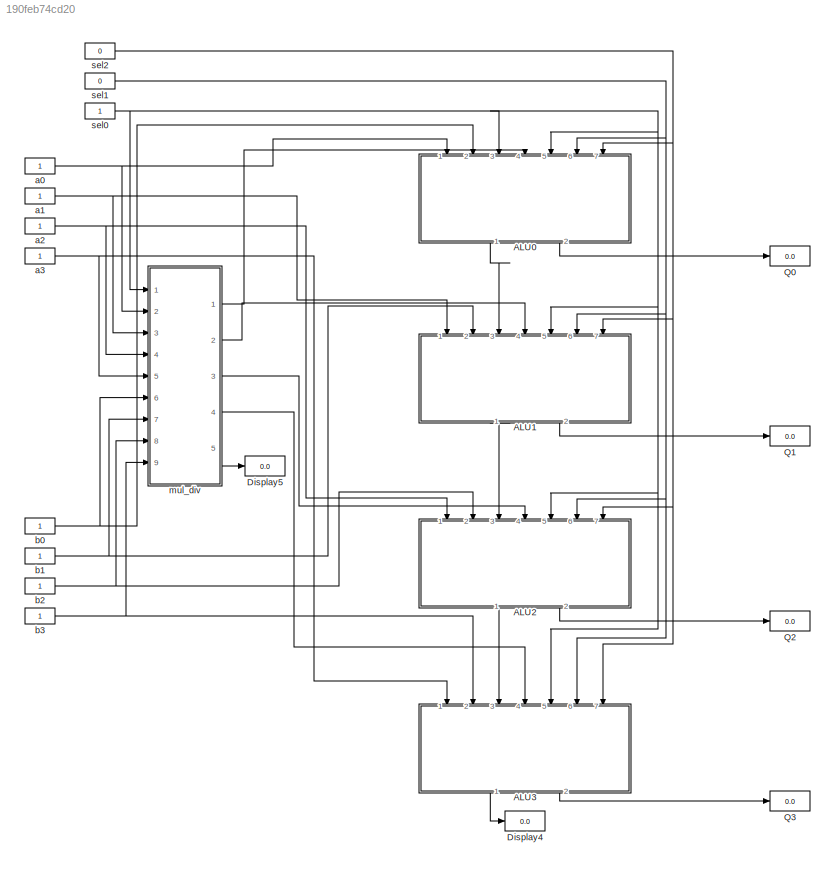
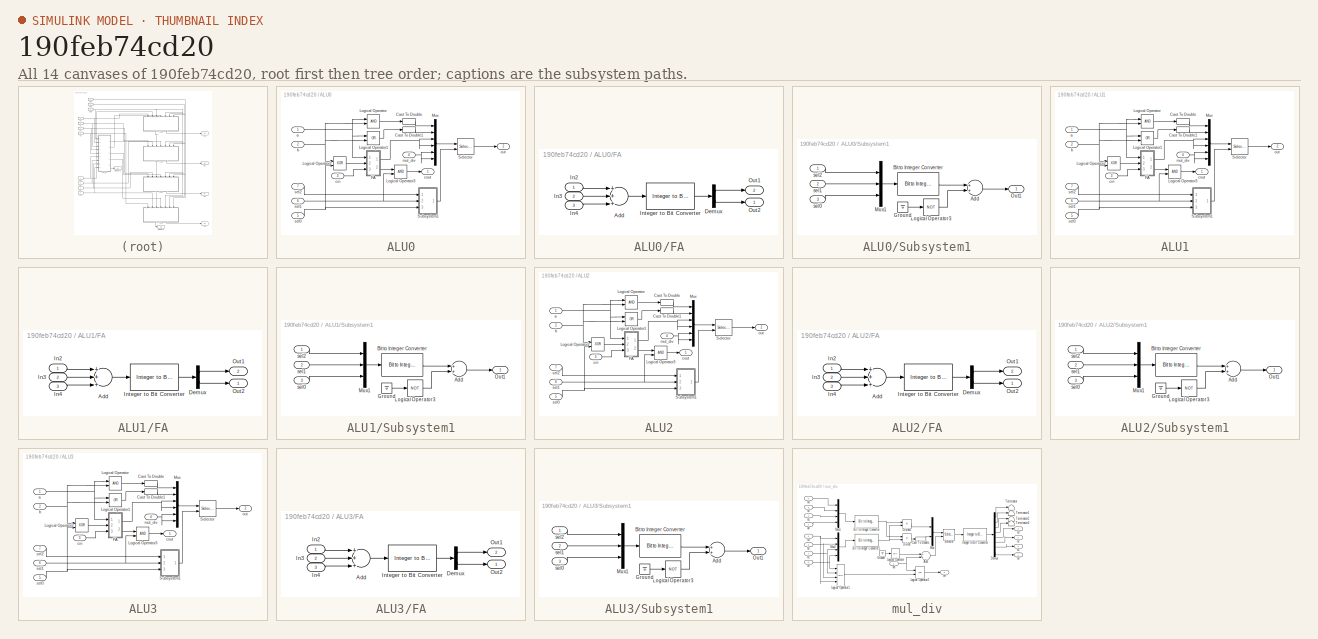
[diagram: thumbnail index - all 14 canvases of the model, root first then tree order]
MODEL slx_190feb74cd20
KIND model
CONFIG AbsTol = auto
CONFIG EnableMultiTasking = off
CONFIG FixedStep = auto
CONFIG MaxStep = auto
CONFIG MinStep = auto
CONFIG RelTol = 1e-3
CONFIG SampleTimeConstraint = Unconstrained
CONFIG Solver = VariableStepAuto
CONFIG SolverName = VariableStepAuto
CONFIG StartTime = 0.0
CONFIG StopTime = 10.0
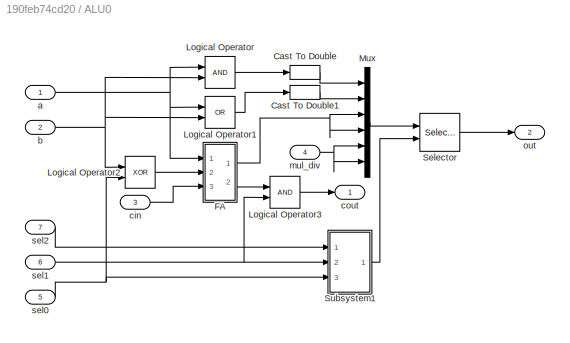
BLOCK [SubSystem] ALU0
  Ports = [7, 2]
  RequestExecContextInheritance = off
BLOCK [DataTypeConversion] ALU0/Cast To Double
  OutDataTypeStr = double
  RndMeth = Floor
  SaturateOnIntegerOverflow = off
BLOCK [DataTypeConversion] ALU0/Cast To Double1
  OutDataTypeStr = double
  RndMeth = Floor
  SaturateOnIntegerOverflow = off
BLOCK [SubSystem] ALU0/FA
  Ports = [3, 2]
  RequestExecContextInheritance = off
BLOCK [Sum] ALU0/FA/Add
  InputSameDT = off
  Inputs = +++
  OutDataTypeStr = Inherit: Inherit via internal rule
  Ports = [3, 1]
  SaturateOnIntegerOverflow = off
BLOCK [Demux] ALU0/FA/Demux
  DisplayOption = bar
  Outputs = 2
  Ports = [1, 2]
BLOCK [Inport] ALU0/FA/In2
  IconDisplay = Port number
BLOCK [Inport] ALU0/FA/In3
  IconDisplay = Port number
  Port = 2
BLOCK [Inport] ALU0/FA/In4
  IconDisplay = Port number
  Port = 3
BLOCK [Reference] ALU0/FA/Integer to Bit Converter  REF=commutil2/Integer to Bit
Converter
  Ports = [1, 1]
  SourceBlock = commutil2/Integer to Bit\nConverter
  SourceProductBaseCode = CM
  SourceProductName = Communications System Toolbox
  SourceType = Integer to Bit Converter
BLOCK [Outport] ALU0/FA/Out1
  IconDisplay = Port number
  Port = 2
BLOCK [Outport] ALU0/FA/Out2
  IconDisplay = Port number
BLOCK [Logic] ALU0/Logical Operator
  AllPortsSameDT = off
  IconShape = distinctive
  OutDataTypeStr = boolean
  Ports = [2, 1]
BLOCK [Logic] ALU0/Logical Operator1
  AllPortsSameDT = off
  IconShape = distinctive
  Operator = OR
  OutDataTypeStr = boolean
  Ports = [2, 1]
BLOCK [Logic] ALU0/Logical Operator2
  AllPortsSameDT = off
  IconShape = distinctive
  Operator = XOR
  OutDataTypeStr = boolean
  Ports = [2, 1]
BLOCK [Logic] ALU0/Logical Operator3
  AllPortsSameDT = off
  IconShape = distinctive
  OutDataTypeStr = boolean
  Ports = [2, 1]
BLOCK [Mux] ALU0/Mux
  DisplayOption = bar
  Inputs = 6
  Ports = [6, 1]
BLOCK [Selector] ALU0/Selector
  IndexOptions = Starting index (port)
  Indices = [1 3]
  InputPortWidth = 6
  OutputSizes = 1
  Ports = [2, 1]
BLOCK [SubSystem] ALU0/Subsystem1
  Ports = [3, 1]
  RequestExecContextInheritance = off
BLOCK [Sum] ALU0/Subsystem1/Add
  InputSameDT = off
  OutDataTypeStr = Inherit: Inherit via internal rule
  Ports = [2, 1]
  SaturateOnIntegerOverflow = off
BLOCK [Reference] ALU0/Subsystem1/Bit to Integer Converter  REF=commutil2/Bit to Integer
Converter
  Ports = [1, 1]
  SourceBlock = commutil2/Bit to Integer\nConverter
  SourceProductBaseCode = CM
  SourceProductName = Communications System Toolbox
  SourceType = Bit to Integer Converter
BLOCK [Ground] ALU0/Subsystem1/Ground
BLOCK [Logic] ALU0/Subsystem1/Logical Operator3
  AllPortsSameDT = off
  IconShape = distinctive
  Operator = NOT
  OutDataTypeStr = boolean
  Ports = [1, 1]
BLOCK [Mux] ALU0/Subsystem1/Mux1
  DisplayOption = bar
  Inputs = 3
  Ports = [3, 1]
BLOCK [Outport] ALU0/Subsystem1/Out1
  IconDisplay = Port number
BLOCK [Inport] ALU0/Subsystem1/sel0
  IconDisplay = Port number
  Port = 3
BLOCK [Inport] ALU0/Subsystem1/sel1
  IconDisplay = Port number
  Port = 2
BLOCK [Inport] ALU0/Subsystem1/sel2
  IconDisplay = Port number
BLOCK [Inport] ALU0/a
  IconDisplay = Port number
BLOCK [Inport] ALU0/b
  IconDisplay = Port number
  Port = 2
BLOCK [Inport] ALU0/cin
  IconDisplay = Port number
  Port = 3
BLOCK [Outport] ALU0/cout
  IconDisplay = Port number
BLOCK [Inport] ALU0/mul_div
  IconDisplay = Port number
  Port = 4
BLOCK [Outport] ALU0/out
  IconDisplay = Port number
  Port = 2
BLOCK [Inport] ALU0/sel0
  IconDisplay = Port number
  Port = 5
BLOCK [Inport] ALU0/sel1
  IconDisplay = Port number
  Port = 6
BLOCK [Inport] ALU0/sel2
  IconDisplay = Port number
  Port = 7
BLOCK [SubSystem] ALU1
  Ports = [7, 2]
  RequestExecContextInheritance = off
BLOCK [DataTypeConversion] ALU1/Cast To Double
  OutDataTypeStr = double
  RndMeth = Floor
  SaturateOnIntegerOverflow = off
BLOCK [DataTypeConversion] ALU1/Cast To Double1
  OutDataTypeStr = double
  RndMeth = Floor
  SaturateOnIntegerOverflow = off
BLOCK [SubSystem] ALU1/FA
  Ports = [3, 2]
  RequestExecContextInheritance = off
BLOCK [Sum] ALU1/FA/Add
  InputSameDT = off
  Inputs = +++
  OutDataTypeStr = Inherit: Inherit via internal rule
  Ports = [3, 1]
  SaturateOnIntegerOverflow = off
BLOCK [Demux] ALU1/FA/Demux
  DisplayOption = bar
  Outputs = 2
  Ports = [1, 2]
BLOCK [Inport] ALU1/FA/In2
  IconDisplay = Port number
BLOCK [Inport] ALU1/FA/In3
  IconDisplay = Port number
  Port = 2
BLOCK [Inport] ALU1/FA/In4
  IconDisplay = Port number
  Port = 3
BLOCK [Reference] ALU1/FA/Integer to Bit Converter  REF=commutil2/Integer to Bit
Converter
  Ports = [1, 1]
  SourceBlock = commutil2/Integer to Bit\nConverter
  SourceProductBaseCode = CM
  SourceProductName = Communications System Toolbox
  SourceType = Integer to Bit Converter
BLOCK [Outport] ALU1/FA/Out1
  IconDisplay = Port number
  Port = 2
BLOCK [Outport] ALU1/FA/Out2
  IconDisplay = Port number
BLOCK [Logic] ALU1/Logical Operator
  AllPortsSameDT = off
  IconShape = distinctive
  OutDataTypeStr = boolean
  Ports = [2, 1]
BLOCK [Logic] ALU1/Logical Operator1
  AllPortsSameDT = off
  IconShape = distinctive
  Operator = OR
  OutDataTypeStr = boolean
  Ports = [2, 1]
BLOCK [Logic] ALU1/Logical Operator2
  AllPortsSameDT = off
  IconShape = distinctive
  Operator = XOR
  OutDataTypeStr = boolean
  Ports = [2, 1]
BLOCK [Logic] ALU1/Logical Operator3
  AllPortsSameDT = off
  IconShape = distinctive
  OutDataTypeStr = boolean
  Ports = [2, 1]
BLOCK [Mux] ALU1/Mux
  DisplayOption = bar
  Inputs = 6
  Ports = [6, 1]
BLOCK [Selector] ALU1/Selector
  IndexOptions = Starting index (port)
  Indices = [1 3]
  InputPortWidth = 6
  OutputSizes = 1
  Ports = [2, 1]
BLOCK [SubSystem] ALU1/Subsystem1
  Ports = [3, 1]
  RequestExecContextInheritance = off
BLOCK [Sum] ALU1/Subsystem1/Add
  InputSameDT = off
  OutDataTypeStr = Inherit: Inherit via internal rule
  Ports = [2, 1]
  SaturateOnIntegerOverflow = off
BLOCK [Reference] ALU1/Subsystem1/Bit to Integer Converter  REF=commutil2/Bit to Integer
Converter
  Ports = [1, 1]
  SourceBlock = commutil2/Bit to Integer\nConverter
  SourceProductBaseCode = CM
  SourceProductName = Communications System Toolbox
  SourceType = Bit to Integer Converter
BLOCK [Ground] ALU1/Subsystem1/Ground
BLOCK [Logic] ALU1/Subsystem1/Logical Operator3
  AllPortsSameDT = off
  IconShape = distinctive
  Operator = NOT
  OutDataTypeStr = boolean
  Ports = [1, 1]
BLOCK [Mux] ALU1/Subsystem1/Mux1
  DisplayOption = bar
  Inputs = 3
  Ports = [3, 1]
BLOCK [Outport] ALU1/Subsystem1/Out1
  IconDisplay = Port number
BLOCK [Inport] ALU1/Subsystem1/sel0
  IconDisplay = Port number
  Port = 3
BLOCK [Inport] ALU1/Subsystem1/sel1
  IconDisplay = Port number
  Port = 2
BLOCK [Inport] ALU1/Subsystem1/sel2
  IconDisplay = Port number
BLOCK [Inport] ALU1/a
  IconDisplay = Port number
BLOCK [Inport] ALU1/b
  IconDisplay = Port number
  Port = 2
BLOCK [Inport] ALU1/cin
  IconDisplay = Port number
  Port = 3
BLOCK [Outport] ALU1/cout
  IconDisplay = Port number
BLOCK [Inport] ALU1/mul_div
  IconDisplay = Port number
  Port = 4
BLOCK [Outport] ALU1/out
  IconDisplay = Port number
  Port = 2
BLOCK [Inport] ALU1/sel0
  IconDisplay = Port number
  Port = 5
BLOCK [Inport] ALU1/sel1
  IconDisplay = Port number
  Port = 6
BLOCK [Inport] ALU1/sel2
  IconDisplay = Port number
  Port = 7
BLOCK [SubSystem] ALU2
  Ports = [7, 2]
  RequestExecContextInheritance = off
BLOCK [DataTypeConversion] ALU2/Cast To Double
  OutDataTypeStr = double
  RndMeth = Floor
  SaturateOnIntegerOverflow = off
BLOCK [DataTypeConversion] ALU2/Cast To Double1
  OutDataTypeStr = double
  RndMeth = Floor
  SaturateOnIntegerOverflow = off
BLOCK [SubSystem] ALU2/FA
  Ports = [3, 2]
  RequestExecContextInheritance = off
BLOCK [Sum] ALU2/FA/Add
  InputSameDT = off
  Inputs = +++
  OutDataTypeStr = Inherit: Inherit via internal rule
  Ports = [3, 1]
  SaturateOnIntegerOverflow = off
BLOCK [Demux] ALU2/FA/Demux
  DisplayOption = bar
  Outputs = 2
  Ports = [1, 2]
BLOCK [Inport] ALU2/FA/In2
  IconDisplay = Port number
BLOCK [Inport] ALU2/FA/In3
  IconDisplay = Port number
  Port = 2
BLOCK [Inport] ALU2/FA/In4
  IconDisplay = Port number
  Port = 3
BLOCK [Reference] ALU2/FA/Integer to Bit Converter  REF=commutil2/Integer to Bit
Converter
  Ports = [1, 1]
  SourceBlock = commutil2/Integer to Bit\nConverter
  SourceProductBaseCode = CM
  SourceProductName = Communications System Toolbox
  SourceType = Integer to Bit Converter
BLOCK [Outport] ALU2/FA/Out1
  IconDisplay = Port number
  Port = 2
BLOCK [Outport] ALU2/FA/Out2
  IconDisplay = Port number
BLOCK [Logic] ALU2/Logical Operator
  AllPortsSameDT = off
  IconShape = distinctive
  OutDataTypeStr = boolean
  Ports = [2, 1]
BLOCK [Logic] ALU2/Logical Operator1
  AllPortsSameDT = off
  IconShape = distinctive
  Operator = OR
  OutDataTypeStr = boolean
  Ports = [2, 1]
BLOCK [Logic] ALU2/Logical Operator2
  AllPortsSameDT = off
  IconShape = distinctive
  Operator = XOR
  OutDataTypeStr = boolean
  Ports = [2, 1]
BLOCK [Logic] ALU2/Logical Operator3
  AllPortsSameDT = off
  IconShape = distinctive
  OutDataTypeStr = boolean
  Ports = [2, 1]
BLOCK [Mux] ALU2/Mux
  DisplayOption = bar
  Inputs = 6
  Ports = [6, 1]
BLOCK [Selector] ALU2/Selector
  IndexOptions = Starting index (port)
  Indices = [1 3]
  InputPortWidth = 6
  OutputSizes = 1
  Ports = [2, 1]
BLOCK [SubSystem] ALU2/Subsystem1
  Ports = [3, 1]
  RequestExecContextInheritance = off
BLOCK [Sum] ALU2/Subsystem1/Add
  InputSameDT = off
  OutDataTypeStr = Inherit: Inherit via internal rule
  Ports = [2, 1]
  SaturateOnIntegerOverflow = off
BLOCK [Reference] ALU2/Subsystem1/Bit to Integer Converter  REF=commutil2/Bit to Integer
Converter
  Ports = [1, 1]
  SourceBlock = commutil2/Bit to Integer\nConverter
  SourceProductBaseCode = CM
  SourceProductName = Communications System Toolbox
  SourceType = Bit to Integer Converter
BLOCK [Ground] ALU2/Subsystem1/Ground
BLOCK [Logic] ALU2/Subsystem1/Logical Operator3
  AllPortsSameDT = off
  IconShape = distinctive
  Operator = NOT
  OutDataTypeStr = boolean
  Ports = [1, 1]
BLOCK [Mux] ALU2/Subsystem1/Mux1
  DisplayOption = bar
  Inputs = 3
  Ports = [3, 1]
BLOCK [Outport] ALU2/Subsystem1/Out1
  IconDisplay = Port number
BLOCK [Inport] ALU2/Subsystem1/sel0
  IconDisplay = Port number
  Port = 3
BLOCK [Inport] ALU2/Subsystem1/sel1
  IconDisplay = Port number
  Port = 2
BLOCK [Inport] ALU2/Subsystem1/sel2
  IconDisplay = Port number
BLOCK [Inport] ALU2/a
  IconDisplay = Port number
BLOCK [Inport] ALU2/b
  IconDisplay = Port number
  Port = 2
BLOCK [Inport] ALU2/cin
  IconDisplay = Port number
  Port = 3
BLOCK [Outport] ALU2/cout
  IconDisplay = Port number
BLOCK [Inport] ALU2/mul_div
  IconDisplay = Port number
  Port = 4
BLOCK [Outport] ALU2/out
  IconDisplay = Port number
  Port = 2
BLOCK [Inport] ALU2/sel0
  IconDisplay = Port number
  Port = 5
BLOCK [Inport] ALU2/sel1
  IconDisplay = Port number
  Port = 6
BLOCK [Inport] ALU2/sel2
  IconDisplay = Port number
  Port = 7
BLOCK [SubSystem] ALU3
  Ports = [7, 2]
  RequestExecContextInheritance = off
BLOCK [DataTypeConversion] ALU3/Cast To Double
  OutDataTypeStr = double
  RndMeth = Floor
  SaturateOnIntegerOverflow = off
BLOCK [DataTypeConversion] ALU3/Cast To Double1
  OutDataTypeStr = double
  RndMeth = Floor
  SaturateOnIntegerOverflow = off
BLOCK [SubSystem] ALU3/FA
  Ports = [3, 2]
  RequestExecContextInheritance = off
BLOCK [Sum] ALU3/FA/Add
  InputSameDT = off
  Inputs = +++
  OutDataTypeStr = Inherit: Inherit via internal rule
  Ports = [3, 1]
  SaturateOnIntegerOverflow = off
BLOCK [Demux] ALU3/FA/Demux
  DisplayOption = bar
  Outputs = 2
  Ports = [1, 2]
BLOCK [Inport] ALU3/FA/In2
  IconDisplay = Port number
BLOCK [Inport] ALU3/FA/In3
  IconDisplay = Port number
  Port = 2
BLOCK [Inport] ALU3/FA/In4
  IconDisplay = Port number
  Port = 3
BLOCK [Reference] ALU3/FA/Integer to Bit Converter  REF=commutil2/Integer to Bit
Converter
  Ports = [1, 1]
  SourceBlock = commutil2/Integer to Bit\nConverter
  SourceProductBaseCode = CM
  SourceProductName = Communications System Toolbox
  SourceType = Integer to Bit Converter
BLOCK [Outport] ALU3/FA/Out1
  IconDisplay = Port number
  Port = 2
BLOCK [Outport] ALU3/FA/Out2
  IconDisplay = Port number
BLOCK [Logic] ALU3/Logical Operator
  AllPortsSameDT = off
  IconShape = distinctive
  OutDataTypeStr = boolean
  Ports = [2, 1]
BLOCK [Logic] ALU3/Logical Operator1
  AllPortsSameDT = off
  IconShape = distinctive
  Operator = OR
  OutDataTypeStr = boolean
  Ports = [2, 1]
BLOCK [Logic] ALU3/Logical Operator2
  AllPortsSameDT = off
  IconShape = distinctive
  Operator = XOR
  OutDataTypeStr = boolean
  Ports = [2, 1]
BLOCK [Logic] ALU3/Logical Operator3
  AllPortsSameDT = off
  IconShape = distinctive
  OutDataTypeStr = boolean
  Ports = [2, 1]
BLOCK [Mux] ALU3/Mux
  DisplayOption = bar
  Inputs = 6
  Ports = [6, 1]
BLOCK [Selector] ALU3/Selector
  IndexOptions = Starting index (port)
  Indices = [1 3]
  InputPortWidth = 6
  OutputSizes = 1
  Ports = [2, 1]
BLOCK [SubSystem] ALU3/Subsystem1
  Ports = [3, 1]
  RequestExecContextInheritance = off
BLOCK [Sum] ALU3/Subsystem1/Add
  InputSameDT = off
  OutDataTypeStr = Inherit: Inherit via internal rule
  Ports = [2, 1]
  SaturateOnIntegerOverflow = off
BLOCK [Reference] ALU3/Subsystem1/Bit to Integer Converter  REF=commutil2/Bit to Integer
Converter
  Ports = [1, 1]
  SourceBlock = commutil2/Bit to Integer\nConverter
  SourceProductBaseCode = CM
  SourceProductName = Communications System Toolbox
  SourceType = Bit to Integer Converter
BLOCK [Ground] ALU3/Subsystem1/Ground
BLOCK [Logic] ALU3/Subsystem1/Logical Operator3
  AllPortsSameDT = off
  IconShape = distinctive
  Operator = NOT
  OutDataTypeStr = boolean
  Ports = [1, 1]
BLOCK [Mux] ALU3/Subsystem1/Mux1
  DisplayOption = bar
  Inputs = 3
  Ports = [3, 1]
BLOCK [Outport] ALU3/Subsystem1/Out1
  IconDisplay = Port number
BLOCK [Inport] ALU3/Subsystem1/sel0
  IconDisplay = Port number
  Port = 3
BLOCK [Inport] ALU3/Subsystem1/sel1
  IconDisplay = Port number
  Port = 2
BLOCK [Inport] ALU3/Subsystem1/sel2
  IconDisplay = Port number
BLOCK [Inport] ALU3/a
  IconDisplay = Port number
BLOCK [Inport] ALU3/b
  IconDisplay = Port number
  Port = 2
BLOCK [Inport] ALU3/cin
  IconDisplay = Port number
  Port = 3
BLOCK [Outport] ALU3/cout
  IconDisplay = Port number
BLOCK [Inport] ALU3/mul_div
  IconDisplay = Port number
  Port = 4
BLOCK [Outport] ALU3/out
  IconDisplay = Port number
  Port = 2
BLOCK [Inport] ALU3/sel0
  IconDisplay = Port number
  Port = 5
BLOCK [Inport] ALU3/sel1
  IconDisplay = Port number
  Port = 6
BLOCK [Inport] ALU3/sel2
  IconDisplay = Port number
  Port = 7
BLOCK [Display] Display4
  Decimation = 1
  Ports = [1]
BLOCK [Display] Display5
  Decimation = 1
  Ports = [1]
BLOCK [Display] Q0
  Decimation = 1
  Ports = [1]
BLOCK [Display] Q1
  Decimation = 1
  Ports = [1]
BLOCK [Display] Q2
  Decimation = 1
  Ports = [1]
BLOCK [Display] Q3
  Decimation = 1
  Ports = [1]
BLOCK [Constant] a0
BLOCK [Constant] a1
BLOCK [Constant] a2
BLOCK [Constant] a3
BLOCK [Constant] b0
BLOCK [Constant] b1
BLOCK [Constant] b2
BLOCK [Constant] b3
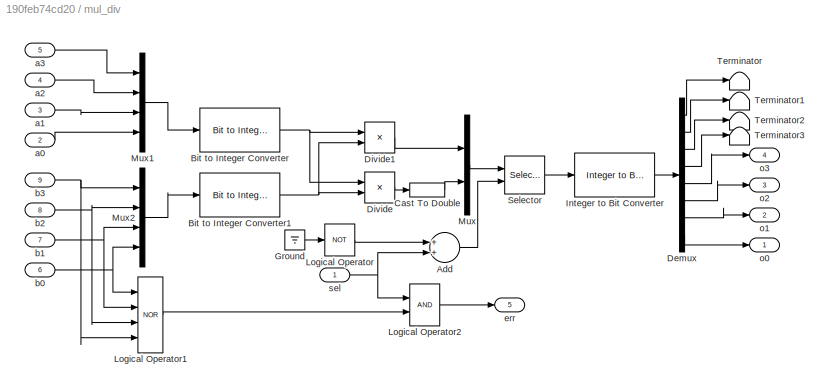
BLOCK [SubSystem] mul_div
  Ports = [9, 5]
  RequestExecContextInheritance = off
BLOCK [Sum] mul_div/Add
  InputSameDT = off
  OutDataTypeStr = Inherit: Inherit via internal rule
  Ports = [2, 1]
  SaturateOnIntegerOverflow = off
BLOCK [Reference] mul_div/Bit to Integer Converter  REF=commutil2/Bit to Integer
Converter
  Ports = [1, 1]
  SourceBlock = commutil2/Bit to Integer\nConverter
  SourceProductBaseCode = CM
  SourceProductName = Communications System Toolbox
  SourceType = Bit to Integer Converter
BLOCK [Reference] mul_div/Bit to Integer Converter1  REF=commutil2/Bit to Integer
Converter
  Ports = [1, 1]
  SourceBlock = commutil2/Bit to Integer\nConverter
  SourceProductBaseCode = CM
  SourceProductName = Communications System Toolbox
  SourceType = Bit to Integer Converter
BLOCK [DataTypeConversion] mul_div/Cast To Double
  OutDataTypeStr = double
  RndMeth = Floor
  SaturateOnIntegerOverflow = off
BLOCK [Demux] mul_div/Demux
  DisplayOption = bar
  Outputs = 8
  Ports = [1, 8]
BLOCK [Product] mul_div/Divide
  InputSameDT = off
  Inputs = */
  OutDataTypeStr = int32
  Ports = [2, 1]
  RndMeth = Floor
  SaturateOnIntegerOverflow = off
BLOCK [Product] mul_div/Divide1
  InputSameDT = off
  Inputs = **
  OutDataTypeStr = Inherit: Inherit via internal rule
  Ports = [2, 1]
  RndMeth = Floor
  SaturateOnIntegerOverflow = off
BLOCK [Ground] mul_div/Ground
BLOCK [Reference] mul_div/Integer to Bit Converter  REF=commutil2/Integer to Bit
Converter
  Ports = [1, 1]
  SourceBlock = commutil2/Integer to Bit\nConverter
  SourceProductBaseCode = CM
  SourceProductName = Communications System Toolbox
  SourceType = Integer to Bit Converter
BLOCK [Logic] mul_div/Logical Operator
  AllPortsSameDT = off
  IconShape = distinctive
  Operator = NOT
  OutDataTypeStr = boolean
  Ports = [1, 1]
BLOCK [Logic] mul_div/Logical Operator1
  AllPortsSameDT = off
  IconShape = distinctive
  Inputs = 4
  Operator = NOR
  OutDataTypeStr = boolean
  Ports = [4, 1]
BLOCK [Logic] mul_div/Logical Operator2
  AllPortsSameDT = off
  IconShape = distinctive
  OutDataTypeStr = boolean
  Ports = [2, 1]
BLOCK [Mux] mul_div/Mux
  DisplayOption = bar
  Inputs = 2
  Ports = [2, 1]
BLOCK [Mux] mul_div/Mux1
  DisplayOption = bar
  Ports = [4, 1]
BLOCK [Mux] mul_div/Mux2
  DisplayOption = bar
  Ports = [4, 1]
BLOCK [Selector] mul_div/Selector
  IndexOptions = Starting index (port)
  Indices = [1 3]
  InputPortWidth = 2
  OutputSizes = 1
  Ports = [2, 1]
BLOCK [Terminator] mul_div/Terminator
BLOCK [Terminator] mul_div/Terminator1
BLOCK [Terminator] mul_div/Terminator2
BLOCK [Terminator] mul_div/Terminator3
BLOCK [Inport] mul_div/a0
  IconDisplay = Port number
  Port = 2
BLOCK [Inport] mul_div/a1
  IconDisplay = Port number
  Port = 3
BLOCK [Inport] mul_div/a2
  IconDisplay = Port number
  Port = 4
BLOCK [Inport] mul_div/a3
  IconDisplay = Port number
  Port = 5
BLOCK [Inport] mul_div/b0
  IconDisplay = Port number
  Port = 6
BLOCK [Inport] mul_div/b1
  IconDisplay = Port number
  Port = 7
BLOCK [Inport] mul_div/b2
  IconDisplay = Port number
  Port = 8
BLOCK [Inport] mul_div/b3
  IconDisplay = Port number
  Port = 9
BLOCK [Outport] mul_div/err
  IconDisplay = Port number
  Port = 5
BLOCK [Outport] mul_div/o0
  IconDisplay = Port number
BLOCK [Outport] mul_div/o1
  IconDisplay = Port number
  Port = 2
BLOCK [Outport] mul_div/o2
  IconDisplay = Port number
  Port = 3
BLOCK [Outport] mul_div/o3
  IconDisplay = Port number
  Port = 4
BLOCK [Inport] mul_div/sel
  IconDisplay = Port number
BLOCK [Constant] sel0
BLOCK [Constant] sel1
  Value = 0
BLOCK [Constant] sel2
  Value = 0
LINE ALU0/Cast To Double1:1 -> ALU0/Mux:2
LINE ALU0/Cast To Double:1 -> ALU0/Mux:1
LINE ALU0/FA/Add:1 -> ALU0/FA/Integer to Bit Converter:1
LINE ALU0/FA/Demux:1 -> ALU0/FA/Out1:1
LINE ALU0/FA/Demux:2 -> ALU0/FA/Out2:1
LINE ALU0/FA/In2:1 -> ALU0/FA/Add:1
LINE ALU0/FA/In3:1 -> ALU0/FA/Add:2
LINE ALU0/FA/In4:1 -> ALU0/FA/Add:3
LINE ALU0/FA/Integer to Bit Converter:1 -> ALU0/FA/Demux:1
NET ALU0/FA:1 -> ALU0/Mux:3, ALU0/Mux:4
LINE ALU0/FA:2 -> ALU0/Logical Operator3:1
LINE ALU0/Logical Operator1:1 -> ALU0/Cast To Double1:1
LINE ALU0/Logical Operator2:1 -> ALU0/FA:2
LINE ALU0/Logical Operator3:1 -> ALU0/cout:1
LINE ALU0/Logical Operator:1 -> ALU0/Cast To Double:1
LINE ALU0/Mux:1 -> ALU0/Selector:1
LINE ALU0/Selector:1 -> ALU0/out:1
LINE ALU0/Subsystem1/Add:1 -> ALU0/Subsystem1/Out1:1
LINE ALU0/Subsystem1/Bit to Integer Converter:1 -> ALU0/Subsystem1/Add:1
LINE ALU0/Subsystem1/Ground:1 -> ALU0/Subsystem1/Logical Operator3:1
LINE ALU0/Subsystem1/Logical Operator3:1 -> ALU0/Subsystem1/Add:2
LINE ALU0/Subsystem1/Mux1:1 -> ALU0/Subsystem1/Bit to Integer Converter:1
LINE ALU0/Subsystem1/sel0:1 -> ALU0/Subsystem1/Mux1:3
LINE ALU0/Subsystem1/sel1:1 -> ALU0/Subsystem1/Mux1:2
LINE ALU0/Subsystem1/sel2:1 -> ALU0/Subsystem1/Mux1:1
LINE ALU0/Subsystem1:1 -> ALU0/Selector:2
NET ALU0/a:1 -> ALU0/FA:1, ALU0/Logical Operator1:1, ALU0/Logical Operator:1
NET ALU0/b:1 -> ALU0/Logical Operator1:2, ALU0/Logical Operator2:1, ALU0/Logical Operator:2
LINE ALU0/cin:1 -> ALU0/FA:3
NET ALU0/mul_div:1 -> ALU0/Mux:5, ALU0/Mux:6
NET ALU0/sel0:1 -> ALU0/Logical Operator2:2, ALU0/Subsystem1:3
NET ALU0/sel1:1 -> ALU0/Logical Operator3:2, ALU0/Subsystem1:2
LINE ALU0/sel2:1 -> ALU0/Subsystem1:1
LINE ALU0:1 -> ALU1:3
LINE ALU0:2 -> Q0:1
LINE ALU1/Cast To Double1:1 -> ALU1/Mux:2
LINE ALU1/Cast To Double:1 -> ALU1/Mux:1
LINE ALU1/FA/Add:1 -> ALU1/FA/Integer to Bit Converter:1
LINE ALU1/FA/Demux:1 -> ALU1/FA/Out1:1
LINE ALU1/FA/Demux:2 -> ALU1/FA/Out2:1
LINE ALU1/FA/In2:1 -> ALU1/FA/Add:1
LINE ALU1/FA/In3:1 -> ALU1/FA/Add:2
LINE ALU1/FA/In4:1 -> ALU1/FA/Add:3
LINE ALU1/FA/Integer to Bit Converter:1 -> ALU1/FA/Demux:1
NET ALU1/FA:1 -> ALU1/Mux:3, ALU1/Mux:4
LINE ALU1/FA:2 -> ALU1/Logical Operator3:1
LINE ALU1/Logical Operator1:1 -> ALU1/Cast To Double1:1
LINE ALU1/Logical Operator2:1 -> ALU1/FA:2
LINE ALU1/Logical Operator3:1 -> ALU1/cout:1
LINE ALU1/Logical Operator:1 -> ALU1/Cast To Double:1
LINE ALU1/Mux:1 -> ALU1/Selector:1
LINE ALU1/Selector:1 -> ALU1/out:1
LINE ALU1/Subsystem1/Add:1 -> ALU1/Subsystem1/Out1:1
LINE ALU1/Subsystem1/Bit to Integer Converter:1 -> ALU1/Subsystem1/Add:1
LINE ALU1/Subsystem1/Ground:1 -> ALU1/Subsystem1/Logical Operator3:1
LINE ALU1/Subsystem1/Logical Operator3:1 -> ALU1/Subsystem1/Add:2
LINE ALU1/Subsystem1/Mux1:1 -> ALU1/Subsystem1/Bit to Integer Converter:1
LINE ALU1/Subsystem1/sel0:1 -> ALU1/Subsystem1/Mux1:3
LINE ALU1/Subsystem1/sel1:1 -> ALU1/Subsystem1/Mux1:2
LINE ALU1/Subsystem1/sel2:1 -> ALU1/Subsystem1/Mux1:1
LINE ALU1/Subsystem1:1 -> ALU1/Selector:2
NET ALU1/a:1 -> ALU1/FA:1, ALU1/Logical Operator1:1, ALU1/Logical Operator:1
NET ALU1/b:1 -> ALU1/Logical Operator1:2, ALU1/Logical Operator2:1, ALU1/Logical Operator:2
LINE ALU1/cin:1 -> ALU1/FA:3
NET ALU1/mul_div:1 -> ALU1/Mux:5, ALU1/Mux:6
NET ALU1/sel0:1 -> ALU1/Logical Operator2:2, ALU1/Subsystem1:3
NET ALU1/sel1:1 -> ALU1/Logical Operator3:2, ALU1/Subsystem1:2
LINE ALU1/sel2:1 -> ALU1/Subsystem1:1
LINE ALU1:1 -> ALU2:3
LINE ALU1:2 -> Q1:1
LINE ALU2/Cast To Double1:1 -> ALU2/Mux:2
LINE ALU2/Cast To Double:1 -> ALU2/Mux:1
LINE ALU2/FA/Add:1 -> ALU2/FA/Integer to Bit Converter:1
LINE ALU2/FA/Demux:1 -> ALU2/FA/Out1:1
LINE ALU2/FA/Demux:2 -> ALU2/FA/Out2:1
LINE ALU2/FA/In2:1 -> ALU2/FA/Add:1
LINE ALU2/FA/In3:1 -> ALU2/FA/Add:2
LINE ALU2/FA/In4:1 -> ALU2/FA/Add:3
LINE ALU2/FA/Integer to Bit Converter:1 -> ALU2/FA/Demux:1
NET ALU2/FA:1 -> ALU2/Mux:3, ALU2/Mux:4
LINE ALU2/FA:2 -> ALU2/Logical Operator3:1
LINE ALU2/Logical Operator1:1 -> ALU2/Cast To Double1:1
LINE ALU2/Logical Operator2:1 -> ALU2/FA:2
LINE ALU2/Logical Operator3:1 -> ALU2/cout:1
LINE ALU2/Logical Operator:1 -> ALU2/Cast To Double:1
LINE ALU2/Mux:1 -> ALU2/Selector:1
LINE ALU2/Selector:1 -> ALU2/out:1
LINE ALU2/Subsystem1/Add:1 -> ALU2/Subsystem1/Out1:1
LINE ALU2/Subsystem1/Bit to Integer Converter:1 -> ALU2/Subsystem1/Add:1
LINE ALU2/Subsystem1/Ground:1 -> ALU2/Subsystem1/Logical Operator3:1
LINE ALU2/Subsystem1/Logical Operator3:1 -> ALU2/Subsystem1/Add:2
LINE ALU2/Subsystem1/Mux1:1 -> ALU2/Subsystem1/Bit to Integer Converter:1
LINE ALU2/Subsystem1/sel0:1 -> ALU2/Subsystem1/Mux1:3
LINE ALU2/Subsystem1/sel1:1 -> ALU2/Subsystem1/Mux1:2
LINE ALU2/Subsystem1/sel2:1 -> ALU2/Subsystem1/Mux1:1
LINE ALU2/Subsystem1:1 -> ALU2/Selector:2
NET ALU2/a:1 -> ALU2/FA:1, ALU2/Logical Operator1:1, ALU2/Logical Operator:1
NET ALU2/b:1 -> ALU2/Logical Operator1:2, ALU2/Logical Operator2:1, ALU2/Logical Operator:2
LINE ALU2/cin:1 -> ALU2/FA:3
NET ALU2/mul_div:1 -> ALU2/Mux:5, ALU2/Mux:6
NET ALU2/sel0:1 -> ALU2/Logical Operator2:2, ALU2/Subsystem1:3
NET ALU2/sel1:1 -> ALU2/Logical Operator3:2, ALU2/Subsystem1:2
LINE ALU2/sel2:1 -> ALU2/Subsystem1:1
LINE ALU2:1 -> ALU3:3
LINE ALU2:2 -> Q2:1
LINE ALU3/Cast To Double1:1 -> ALU3/Mux:2
LINE ALU3/Cast To Double:1 -> ALU3/Mux:1
LINE ALU3/FA/Add:1 -> ALU3/FA/Integer to Bit Converter:1
LINE ALU3/FA/Demux:1 -> ALU3/FA/Out1:1
LINE ALU3/FA/Demux:2 -> ALU3/FA/Out2:1
LINE ALU3/FA/In2:1 -> ALU3/FA/Add:1
LINE ALU3/FA/In3:1 -> ALU3/FA/Add:2
LINE ALU3/FA/In4:1 -> ALU3/FA/Add:3
LINE ALU3/FA/Integer to Bit Converter:1 -> ALU3/FA/Demux:1
NET ALU3/FA:1 -> ALU3/Mux:3, ALU3/Mux:4
LINE ALU3/FA:2 -> ALU3/Logical Operator3:1
LINE ALU3/Logical Operator1:1 -> ALU3/Cast To Double1:1
LINE ALU3/Logical Operator2:1 -> ALU3/FA:2
LINE ALU3/Logical Operator3:1 -> ALU3/cout:1
LINE ALU3/Logical Operator:1 -> ALU3/Cast To Double:1
LINE ALU3/Mux:1 -> ALU3/Selector:1
LINE ALU3/Selector:1 -> ALU3/out:1
LINE ALU3/Subsystem1/Add:1 -> ALU3/Subsystem1/Out1:1
LINE ALU3/Subsystem1/Bit to Integer Converter:1 -> ALU3/Subsystem1/Add:1
LINE ALU3/Subsystem1/Ground:1 -> ALU3/Subsystem1/Logical Operator3:1
LINE ALU3/Subsystem1/Logical Operator3:1 -> ALU3/Subsystem1/Add:2
LINE ALU3/Subsystem1/Mux1:1 -> ALU3/Subsystem1/Bit to Integer Converter:1
LINE ALU3/Subsystem1/sel0:1 -> ALU3/Subsystem1/Mux1:3
LINE ALU3/Subsystem1/sel1:1 -> ALU3/Subsystem1/Mux1:2
LINE ALU3/Subsystem1/sel2:1 -> ALU3/Subsystem1/Mux1:1
LINE ALU3/Subsystem1:1 -> ALU3/Selector:2
NET ALU3/a:1 -> ALU3/FA:1, ALU3/Logical Operator1:1, ALU3/Logical Operator:1
NET ALU3/b:1 -> ALU3/Logical Operator1:2, ALU3/Logical Operator2:1, ALU3/Logical Operator:2
LINE ALU3/cin:1 -> ALU3/FA:3
NET ALU3/mul_div:1 -> ALU3/Mux:5, ALU3/Mux:6
NET ALU3/sel0:1 -> ALU3/Logical Operator2:2, ALU3/Subsystem1:3
NET ALU3/sel1:1 -> ALU3/Logical Operator3:2, ALU3/Subsystem1:2
LINE ALU3/sel2:1 -> ALU3/Subsystem1:1
LINE ALU3:1 -> Display4:1
LINE ALU3:2 -> Q3:1
NET a0:1 -> ALU0:1, mul_div:2
NET a1:1 -> ALU1:1, mul_div:3
NET a2:1 -> ALU2:1, mul_div:4
NET a3:1 -> ALU3:1, mul_div:5
NET b0:1 -> ALU0:2, mul_div:6
NET b1:1 -> ALU1:2, mul_div:7
NET b2:1 -> ALU2:2, mul_div:8
NET b3:1 -> ALU3:2, mul_div:9
LINE mul_div/Add:1 -> mul_div/Selector:2
NET mul_div/Bit to Integer Converter1:1 -> mul_div/Divide1:2, mul_div/Divide:2
NET mul_div/Bit to Integer Converter:1 -> mul_div/Divide1:1, mul_div/Divide:1
LINE mul_div/Cast To Double:1 -> mul_div/Mux:2
LINE mul_div/Demux:1 -> mul_div/Terminator:1
LINE mul_div/Demux:2 -> mul_div/Terminator1:1
LINE mul_div/Demux:3 -> mul_div/Terminator2:1
LINE mul_div/Demux:4 -> mul_div/Terminator3:1
LINE mul_div/Demux:5 -> mul_div/o3:1
LINE mul_div/Demux:6 -> mul_div/o2:1
LINE mul_div/Demux:7 -> mul_div/o1:1
LINE mul_div/Demux:8 -> mul_div/o0:1
LINE mul_div/Divide1:1 -> mul_div/Mux:1
LINE mul_div/Divide:1 -> mul_div/Cast To Double:1
LINE mul_div/Ground:1 -> mul_div/Logical Operator:1
LINE mul_div/Integer to Bit Converter:1 -> mul_div/Demux:1
LINE mul_div/Logical Operator1:1 -> mul_div/Logical Operator2:2
LINE mul_div/Logical Operator2:1 -> mul_div/err:1
LINE mul_div/Logical Operator:1 -> mul_div/Add:1
LINE mul_div/Mux1:1 -> mul_div/Bit to Integer Converter:1
LINE mul_div/Mux2:1 -> mul_div/Bit to Integer Converter1:1
LINE mul_div/Mux:1 -> mul_div/Selector:1
LINE mul_div/Selector:1 -> mul_div/Integer to Bit Converter:1
LINE mul_div/a0:1 -> mul_div/Mux1:4
LINE mul_div/a1:1 -> mul_div/Mux1:3
LINE mul_div/a2:1 -> mul_div/Mux1:2
LINE mul_div/a3:1 -> mul_div/Mux1:1
NET mul_div/b0:1 -> mul_div/Logical Operator1:1, mul_div/Mux2:4
NET mul_div/b1:1 -> mul_div/Logical Operator1:2, mul_div/Mux2:3
NET mul_div/b2:1 -> mul_div/Logical Operator1:3, mul_div/Mux2:2
NET mul_div/b3:1 -> mul_div/Logical Operator1:4, mul_div/Mux2:1
NET mul_div/sel:1 -> mul_div/Add:2, mul_div/Logical Operator2:1
LINE mul_div:1 -> ALU0:4
LINE mul_div:2 -> ALU1:4
LINE mul_div:3 -> ALU2:4
LINE mul_div:4 -> ALU3:4
LINE mul_div:5 -> Display5:1
NET sel0:1 -> ALU0:3, ALU0:5, ALU1:5, ALU2:5, ALU3:5, mul_div:1
NET sel1:1 -> ALU0:6, ALU1:6, ALU2:6, ALU3:6
NET sel2:1 -> ALU0:7, ALU1:7, ALU2:7, ALU3:7
note: NET lines group one-source signal fan-out (src -> all destinations, sorted); 1:1 wires keep LINE
